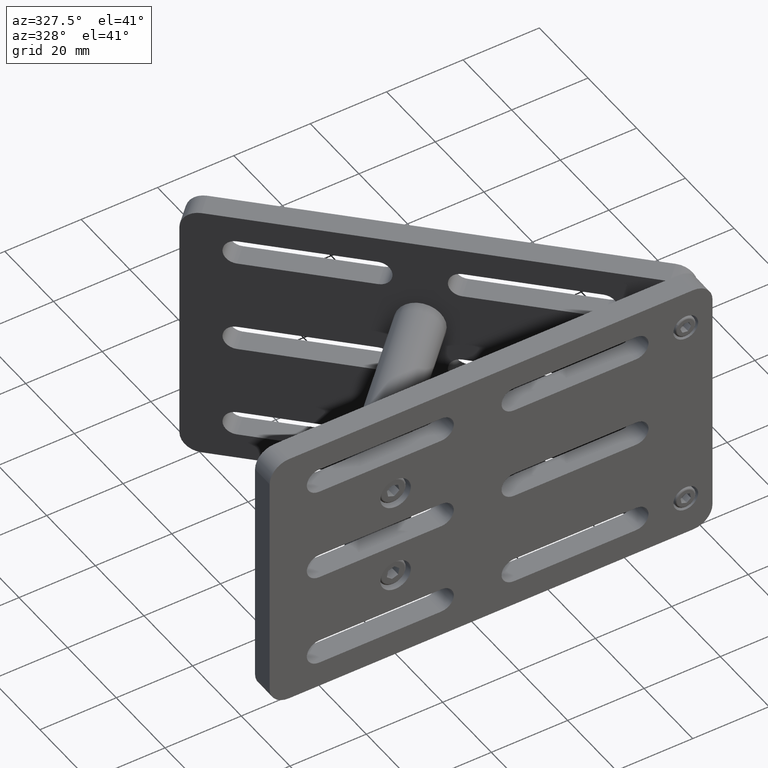
[diagram: clean part render]
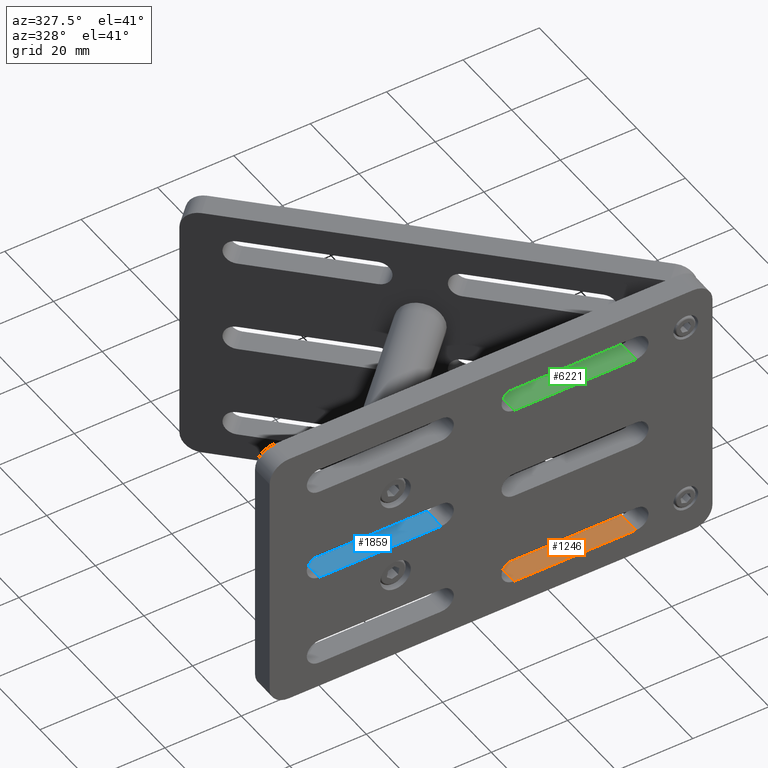
[diagram: same view with three faces highlighted in distinct colors, each labeled with its STEP entity id]
A machine part, auxiliary view with three faces highlighted in distinct colors.
Their STEP definitions:

[orange] entity #1246 — the highlighted planar face has unit normal (0, 0, -1).
#70 = DIRECTION ( 'NONE',  ( -0.0000000000000000000, 1.000000000000000000, -0.0000000000000000000 ) ) ;
#197 = LINE ( 'NONE', #5719, #6159 ) ;
#220 = VERTEX_POINT ( 'NONE', #4806 ) ;
#275 = EDGE_CURVE ( 'NONE', #1916, #220, #4882, .T. ) ;
#488 = VECTOR ( 'NONE', #973, 1000.000000000000000 ) ;
#858 = CARTESIAN_POINT ( 'NONE',  ( 41.49999999999958800, 3.000000000000000000, -28.24999999999995000 ) ) ;
#973 = DIRECTION ( 'NONE',  ( -1.000000000000000000, 0.0000000000000000000, -6.505213034913190300E-016 ) ) ;
#1186 = EDGE_CURVE ( 'NONE', #220, #2184, #197, .T. ) ;
#1237 = AXIS2_PLACEMENT_3D ( 'NONE', #6384, #1997, #6922 ) ;
#1246 = ADVANCED_FACE ( 'NONE', ( #6599 ), #4238, .F. ) ;
#1455 = CARTESIAN_POINT ( 'NONE',  ( 41.49999999999958800, -3.000000000000000000, -28.24999999999995000 ) ) ;
#1515 = VECTOR ( 'NONE', #3747, 1000.000000000000000 ) ;
#1590 = LINE ( 'NONE', #5011, #5712 ) ;
#1916 = VERTEX_POINT ( 'NONE', #1967 ) ;
#1967 = CARTESIAN_POINT ( 'NONE',  ( 41.49999999999958800, -3.000000000000000000, -28.24999999999995000 ) ) ;
#1997 = DIRECTION ( 'NONE',  ( 6.505213034913190300E-016, 0.0000000000000000000, -1.000000000000000000 ) ) ;
#2184 = VERTEX_POINT ( 'NONE', #4859 ) ;
#2936 = VERTEX_POINT ( 'NONE', #858 ) ;
#3747 = DIRECTION ( 'NONE',  ( -1.000000000000000000, 0.0000000000000000000, -6.505213034913190300E-016 ) ) ;
#4238 = PLANE ( 'NONE',  #1237 ) ;
#4788 = EDGE_CURVE ( 'NONE', #1916, #2936, #1590, .T. ) ;
#4806 = CARTESIAN_POINT ( 'NONE',  ( 9.500000000000397900, -3.000000000000000000, -28.24999999999996800 ) ) ;
#4859 = CARTESIAN_POINT ( 'NONE',  ( 9.500000000000392600, 3.000000000000000000, -28.24999999999996800 ) ) ;
#4882 = LINE ( 'NONE', #1455, #1515 ) ;
#4938 = ORIENTED_EDGE ( 'NONE', *, *, #275, .F. ) ;
#5011 = CARTESIAN_POINT ( 'NONE',  ( 41.49999999999958800, -3.000000000000000000, -28.24999999999995000 ) ) ;
#5012 = ORIENTED_EDGE ( 'NONE', *, *, #4788, .T. ) ;
#5217 = ORIENTED_EDGE ( 'NONE', *, *, #6490, .T. ) ;
#5712 = VECTOR ( 'NONE', #70, 1000.000000000000000 ) ;
#5719 = CARTESIAN_POINT ( 'NONE',  ( 9.500000000000392600, -3.000000000000000000, -28.24999999999996800 ) ) ;
#6159 = VECTOR ( 'NONE', #6827, 1000.000000000000000 ) ;
#6186 = LINE ( 'NONE', #6489, #488 ) ;
#6384 = CARTESIAN_POINT ( 'NONE',  ( 41.49999999999958800, -3.000000000000000000, -28.24999999999995000 ) ) ;
#6489 = CARTESIAN_POINT ( 'NONE',  ( 41.49999999999958800, 3.000000000000000000, -28.24999999999995000 ) ) ;
#6490 = EDGE_CURVE ( 'NONE', #2936, #2184, #6186, .T. ) ;
#6562 = ORIENTED_EDGE ( 'NONE', *, *, #1186, .F. ) ;
#6599 = FACE_OUTER_BOUND ( 'NONE', #7120, .T. ) ;
#6827 = DIRECTION ( 'NONE',  ( -0.0000000000000000000, 1.000000000000000000, -0.0000000000000000000 ) ) ;
#6922 = DIRECTION ( 'NONE',  ( -1.000000000000000000, 0.0000000000000000000, -6.505213034913190300E-016 ) ) ;
#7120 = EDGE_LOOP ( 'NONE', ( #5217, #6562, #4938, #5012 ) ) ;

[blue] entity #1859 — the highlighted planar face has unit normal (0, 0, -1).
#65 = DIRECTION ( 'NONE',  ( -1.000000000000000000, -0.0000000000000000000, -1.897353801849650000E-016 ) ) ;
#282 = EDGE_LOOP ( 'NONE', ( #6360, #5844, #3578, #3060 ) ) ;
#354 = DIRECTION ( 'NONE',  ( -1.000000000000000000, 0.0000000000000000000, -1.897353801849650000E-016 ) ) ;
#365 = CARTESIAN_POINT ( 'NONE',  ( -41.50000000000010700, 3.000000000000000000, -3.250000000000010200 ) ) ;
#403 = LINE ( 'NONE', #2511, #3532 ) ;
#1371 = VERTEX_POINT ( 'NONE', #5365 ) ;
#1448 = CARTESIAN_POINT ( 'NONE',  ( -41.50000000000010700, -3.000000000000000000, -3.250000000000010200 ) ) ;
#1483 = PLANE ( 'NONE',  #3266 ) ;
#1859 = ADVANCED_FACE ( 'NONE', ( #3586 ), #1483, .F. ) ;
#2060 = VERTEX_POINT ( 'NONE', #2085 ) ;
#2085 = CARTESIAN_POINT ( 'NONE',  ( -41.50000000000011400, -3.000000000000000000, -3.250000000000011100 ) ) ;
#2302 = CARTESIAN_POINT ( 'NONE',  ( -9.500000000000399700, -3.000000000000000000, -3.250000000000004000 ) ) ;
#2511 = CARTESIAN_POINT ( 'NONE',  ( -9.500000000000399700, -3.000000000000000000, -3.250000000000004000 ) ) ;
#2757 = VECTOR ( 'NONE', #5794, 1000.000000000000000 ) ;
#2888 = VECTOR ( 'NONE', #4344, 1000.000000000000000 ) ;
#2919 = LINE ( 'NONE', #1448, #2757 ) ;
#3041 = LINE ( 'NONE', #3386, #3134 ) ;
#3060 = ORIENTED_EDGE ( 'NONE', *, *, #5009, .T. ) ;
#3134 = VECTOR ( 'NONE', #65, 1000.000000000000000 ) ;
#3266 = AXIS2_PLACEMENT_3D ( 'NONE', #6912, #6424, #354 ) ;
#3386 = CARTESIAN_POINT ( 'NONE',  ( -41.50000000000010700, 3.000000000000000000, -3.250000000000010200 ) ) ;
#3532 = VECTOR ( 'NONE', #5760, 1000.000000000000000 ) ;
#3578 = ORIENTED_EDGE ( 'NONE', *, *, #3758, .F. ) ;
#3586 = FACE_OUTER_BOUND ( 'NONE', #282, .T. ) ;
#3758 = EDGE_CURVE ( 'NONE', #4368, #2060, #4351, .T. ) ;
#4344 = DIRECTION ( 'NONE',  ( -1.000000000000000000, -0.0000000000000000000, -1.897353801849650000E-016 ) ) ;
#4351 = LINE ( 'NONE', #6190, #2888 ) ;
#4368 = VERTEX_POINT ( 'NONE', #2302 ) ;
#4631 = EDGE_CURVE ( 'NONE', #1371, #7054, #3041, .T. ) ;
#5009 = EDGE_CURVE ( 'NONE', #4368, #1371, #403, .T. ) ;
#5365 = CARTESIAN_POINT ( 'NONE',  ( -9.500000000000403200, 3.000000000000000000, -3.250000000000004900 ) ) ;
#5760 = DIRECTION ( 'NONE',  ( -0.0000000000000000000, 1.000000000000000000, -0.0000000000000000000 ) ) ;
#5794 = DIRECTION ( 'NONE',  ( -0.0000000000000000000, 1.000000000000000000, -0.0000000000000000000 ) ) ;
#5844 = ORIENTED_EDGE ( 'NONE', *, *, #6398, .F. ) ;
#6190 = CARTESIAN_POINT ( 'NONE',  ( -41.50000000000010700, -3.000000000000000000, -3.250000000000010200 ) ) ;
#6360 = ORIENTED_EDGE ( 'NONE', *, *, #4631, .T. ) ;
#6398 = EDGE_CURVE ( 'NONE', #2060, #7054, #2919, .T. ) ;
#6424 = DIRECTION ( 'NONE',  ( 1.897353801849650000E-016, 0.0000000000000000000, -1.000000000000000000 ) ) ;
#6912 = CARTESIAN_POINT ( 'NONE',  ( -41.50000000000010700, -3.000000000000000000, -3.250000000000010200 ) ) ;
#7054 = VERTEX_POINT ( 'NONE', #365 ) ;

[green] entity #6221 — the highlighted planar face has unit normal (0, 0, -1).
#8 = CARTESIAN_POINT ( 'NONE',  ( 41.49999999999962300, -3.000000000000000000, 21.75000000000002100 ) ) ;
#25 = LINE ( 'NONE', #2277, #2641 ) ;
#232 = VERTEX_POINT ( 'NONE', #2063 ) ;
#453 = DIRECTION ( 'NONE',  ( 8.673617379884027600E-016, 0.0000000000000000000, -1.000000000000000000 ) ) ;
#1130 = VERTEX_POINT ( 'NONE', #4093 ) ;
#1199 = DIRECTION ( 'NONE',  ( -0.0000000000000000000, 1.000000000000000000, -0.0000000000000000000 ) ) ;
#1367 = LINE ( 'NONE', #4231, #7042 ) ;
#1513 = EDGE_CURVE ( 'NONE', #5436, #1130, #4433, .T. ) ;
#1621 = FACE_OUTER_BOUND ( 'NONE', #7058, .T. ) ;
#1791 = CARTESIAN_POINT ( 'NONE',  ( 9.499999999999595000, 3.000000000000000000, 21.74999999999999600 ) ) ;
#2063 = CARTESIAN_POINT ( 'NONE',  ( 41.49999999999962300, 3.000000000000000000, 21.75000000000002100 ) ) ;
#2188 = CARTESIAN_POINT ( 'NONE',  ( 41.49999999999962300, -3.000000000000000000, 21.75000000000002100 ) ) ;
#2277 = CARTESIAN_POINT ( 'NONE',  ( 41.49999999999962300, 3.000000000000000000, 21.75000000000002100 ) ) ;
#2450 = EDGE_CURVE ( 'NONE', #1130, #2681, #4608, .T. ) ;
#2537 = AXIS2_PLACEMENT_3D ( 'NONE', #2188, #453, #3256 ) ;
#2560 = ORIENTED_EDGE ( 'NONE', *, *, #5980, .T. ) ;
#2611 = CARTESIAN_POINT ( 'NONE',  ( 41.49999999999962300, -3.000000000000000000, 21.75000000000002100 ) ) ;
#2641 = VECTOR ( 'NONE', #5545, 1000.000000000000000 ) ;
#2681 = VERTEX_POINT ( 'NONE', #1791 ) ;
#2829 = DIRECTION ( 'NONE',  ( -1.000000000000000000, 0.0000000000000000000, -8.673617379884027600E-016 ) ) ;
#3155 = VECTOR ( 'NONE', #1199, 1000.000000000000000 ) ;
#3169 = EDGE_CURVE ( 'NONE', #232, #2681, #25, .T. ) ;
#3256 = DIRECTION ( 'NONE',  ( -1.000000000000000000, 0.0000000000000000000, -8.673617379884027600E-016 ) ) ;
#4093 = CARTESIAN_POINT ( 'NONE',  ( 9.499999999999598500, -3.000000000000000000, 21.74999999999999600 ) ) ;
#4231 = CARTESIAN_POINT ( 'NONE',  ( 41.49999999999962300, -3.000000000000000000, 21.75000000000002100 ) ) ;
#4433 = LINE ( 'NONE', #8, #6065 ) ;
#4608 = LINE ( 'NONE', #5582, #3155 ) ;
#5359 = ORIENTED_EDGE ( 'NONE', *, *, #3169, .T. ) ;
#5436 = VERTEX_POINT ( 'NONE', #2611 ) ;
#5471 = PLANE ( 'NONE',  #2537 ) ;
#5545 = DIRECTION ( 'NONE',  ( -1.000000000000000000, 0.0000000000000000000, -8.673617379884027600E-016 ) ) ;
#5582 = CARTESIAN_POINT ( 'NONE',  ( 9.499999999999595000, -3.000000000000000000, 21.74999999999999600 ) ) ;
#5980 = EDGE_CURVE ( 'NONE', #5436, #232, #1367, .T. ) ;
#6065 = VECTOR ( 'NONE', #2829, 1000.000000000000000 ) ;
#6221 = ADVANCED_FACE ( 'NONE', ( #1621 ), #5471, .F. ) ;
#6448 = DIRECTION ( 'NONE',  ( -0.0000000000000000000, 1.000000000000000000, -0.0000000000000000000 ) ) ;
#6559 = ORIENTED_EDGE ( 'NONE', *, *, #2450, .F. ) ;
#7042 = VECTOR ( 'NONE', #6448, 1000.000000000000000 ) ;
#7053 = ORIENTED_EDGE ( 'NONE', *, *, #1513, .F. ) ;
#7058 = EDGE_LOOP ( 'NONE', ( #5359, #6559, #7053, #2560 ) ) ;